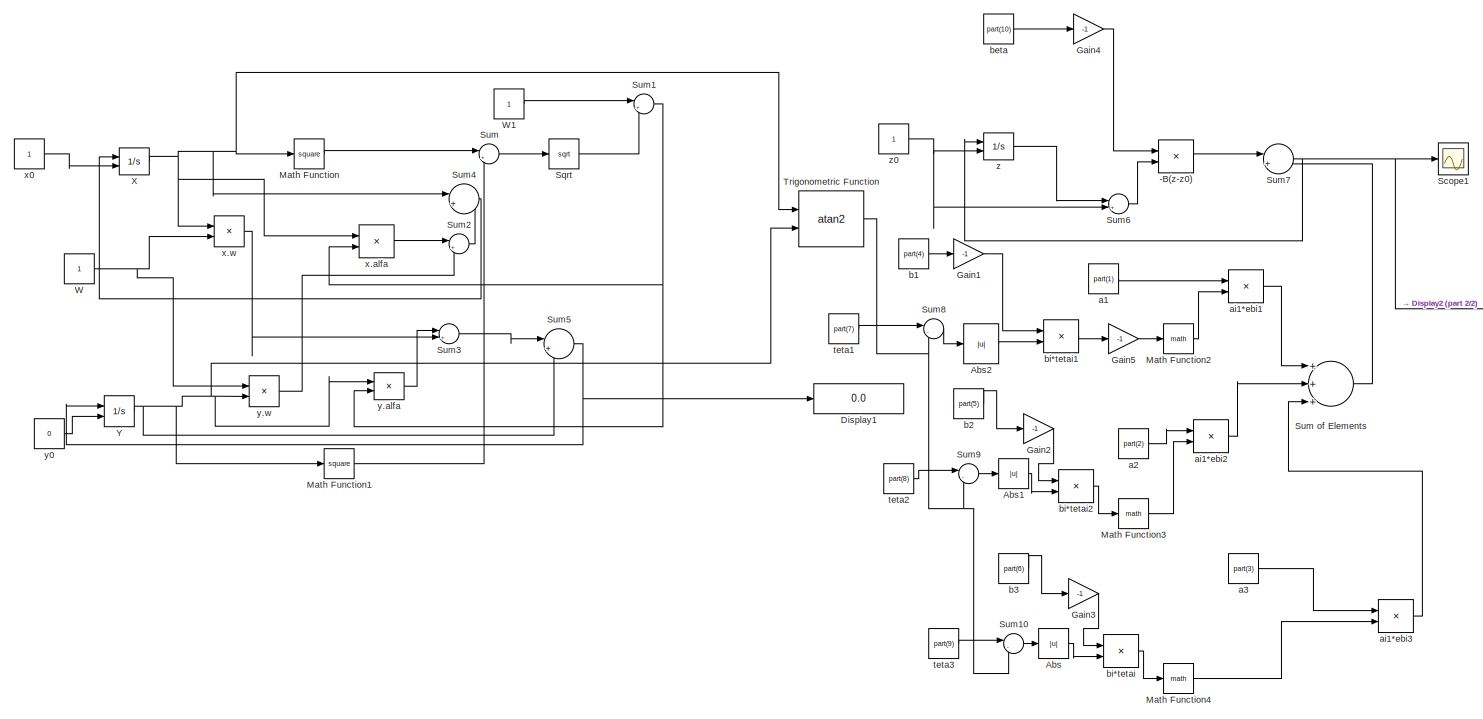
[diagram: root canvas - part 1/2, most of the canvas]
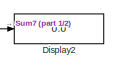
[diagram: root canvas - part 2/2, middle right region]
MODEL slx_1a3cc3e0c7d6
KIND model
CONFIG AbsTol = auto
CONFIG FixedStep = auto
CONFIG MaxStep = auto
CONFIG MinStep = auto
CONFIG RelTol = 1e-3
CONFIG SampleTimeConstraint = Unconstrained
CONFIG Solver = VariableStepAuto
CONFIG SolverMode = Auto
CONFIG SolverName = VariableStepAuto
CONFIG StartTime = 0.0
CONFIG StopTime = inf
BLOCK [Product] -B(z-z0)
  InputSameDT = off
  OutDataTypeStr = Inherit: Inherit via internal rule
  Ports = [2, 1]
  RndMeth = Floor
  SaturateOnIntegerOverflow = off
BLOCK [Abs] Abs
  SaturateOnIntegerOverflow = off
BLOCK [Abs] Abs1
  SaturateOnIntegerOverflow = off
BLOCK [Abs] Abs2
  SaturateOnIntegerOverflow = off
BLOCK [Display] Display1
  Decimation = 1
  Ports = [1]
BLOCK [Display] Display2
  Decimation = 1
  Ports = [1]
BLOCK [Gain] Gain1
  Gain = -1
  OutDataTypeStr = Inherit: Inherit via internal rule
  ParamDataTypeStr = Inherit: Inherit via internal rule
  SaturateOnIntegerOverflow = off
BLOCK [Gain] Gain2
  Gain = -1
  OutDataTypeStr = Inherit: Inherit via internal rule
  ParamDataTypeStr = Inherit: Inherit via internal rule
  SaturateOnIntegerOverflow = off
BLOCK [Gain] Gain3
  Gain = -1
  OutDataTypeStr = Inherit: Inherit via internal rule
  ParamDataTypeStr = Inherit: Inherit via internal rule
  SaturateOnIntegerOverflow = off
BLOCK [Gain] Gain4
  Gain = -1
  OutDataTypeStr = Inherit: Inherit via internal rule
  ParamDataTypeStr = Inherit: Inherit via internal rule
  SaturateOnIntegerOverflow = off
BLOCK [Gain] Gain5
  Gain = -1
  OutDataTypeStr = Inherit: Inherit via internal rule
  ParamDataTypeStr = Inherit: Inherit via internal rule
  SaturateOnIntegerOverflow = off
BLOCK [Math] Math Function
  Operator = square
  Ports = [1, 1]
BLOCK [Math] Math Function1
  Operator = square
  Ports = [1, 1]
BLOCK [Math] Math Function2
  Ports = [1, 1]
BLOCK [Math] Math Function3
  Ports = [1, 1]
BLOCK [Math] Math Function4
  Ports = [1, 1]
BLOCK [Scope] Scope1
  Ports = [1]
  ScopeSpecificationString = Simulink.scopes.TimeScopeBlockCfg('CurrentConfiguration', extmgr.ConfigurationSet(extmgr.Configuration('Core','General UI',true),extmgr.Configuration('Core','Source UI',true),extmgr.Configuration('Sources','WiredSimulink',true),extmgr.Configuration('Visuals','Time Domain',true,'SerializedDisplays',{struct('MinYLimReal','-4524389760414.2686','MaxYLimReal','502709973357.12317','YLabelReal','','MinYL...<+1442ch>
BLOCK [Sqrt] Sqrt
BLOCK [Sum] Sum
  IconShape = round
  InputSameDT = off
  Inputs = |++
  OutDataTypeStr = Inherit: Inherit via internal rule
  Ports = [2, 1]
  SaturateOnIntegerOverflow = off
BLOCK [Sum] Sum of Elements
  InputSameDT = off
  Inputs = +++
  OutDataTypeStr = Inherit: Inherit via internal rule
  Ports = [3, 1]
  SaturateOnIntegerOverflow = off
BLOCK [Sum] Sum1
  IconShape = round
  InputSameDT = off
  Inputs = |+-
  OutDataTypeStr = Inherit: Inherit via internal rule
  Ports = [2, 1]
  SaturateOnIntegerOverflow = off
BLOCK [Sum] Sum10
  IconShape = round
  InputSameDT = off
  Inputs = |-+
  OutDataTypeStr = Inherit: Inherit via internal rule
  Ports = [2, 1]
  SaturateOnIntegerOverflow = off
BLOCK [Sum] Sum2
  IconShape = round
  InputSameDT = off
  Inputs = |+-
  OutDataTypeStr = Inherit: Inherit via internal rule
  Ports = [2, 1]
  SaturateOnIntegerOverflow = off
BLOCK [Sum] Sum3
  IconShape = round
  InputSameDT = off
  Inputs = |++
  OutDataTypeStr = Inherit: Inherit via internal rule
  Ports = [2, 1]
  SaturateOnIntegerOverflow = off
BLOCK [Sum] Sum4
  IconShape = round
  InputSameDT = off
  Inputs = |++
  OutDataTypeStr = Inherit: Inherit via internal rule
  Ports = [2, 1]
  SaturateOnIntegerOverflow = off
BLOCK [Sum] Sum5
  IconShape = round
  InputSameDT = off
  Inputs = |++
  OutDataTypeStr = Inherit: Inherit via internal rule
  Ports = [2, 1]
  SaturateOnIntegerOverflow = off
BLOCK [Sum] Sum6
  IconShape = round
  InputSameDT = off
  Inputs = |+-
  OutDataTypeStr = Inherit: Inherit via internal rule
  Ports = [2, 1]
  SaturateOnIntegerOverflow = off
BLOCK [Sum] Sum7
  IconShape = round
  InputSameDT = off
  Inputs = |++
  OutDataTypeStr = Inherit: Inherit via internal rule
  Ports = [2, 1]
  SaturateOnIntegerOverflow = off
BLOCK [Sum] Sum8
  IconShape = round
  InputSameDT = off
  Inputs = |-+
  OutDataTypeStr = Inherit: Inherit via internal rule
  Ports = [2, 1]
  SaturateOnIntegerOverflow = off
BLOCK [Sum] Sum9
  IconShape = round
  InputSameDT = off
  Inputs = |-+
  OutDataTypeStr = Inherit: Inherit via internal rule
  Ports = [2, 1]
  SaturateOnIntegerOverflow = off
BLOCK [Trigonometry] Trigonometric Function
  Operator = atan2
  Ports = [2, 1]
BLOCK [Constant] W
BLOCK [Constant] W1
BLOCK [Integrator] X
  InitialCondition = 1
  InitialConditionSource = external
  Ports = [2, 1]
BLOCK [Integrator] Y
  InitialConditionSource = external
  Ports = [2, 1]
BLOCK [Constant] a1
  Value = part(1)
BLOCK [Constant] a2
  Value = part(2)
BLOCK [Constant] a3
  Value = part(3)
BLOCK [Product] ai1*ebi1
  InputSameDT = off
  OutDataTypeStr = Inherit: Inherit via internal rule
  Ports = [2, 1]
  RndMeth = Floor
  SaturateOnIntegerOverflow = off
BLOCK [Product] ai1*ebi2
  InputSameDT = off
  OutDataTypeStr = Inherit: Inherit via internal rule
  Ports = [2, 1]
  RndMeth = Floor
  SaturateOnIntegerOverflow = off
BLOCK [Product] ai1*ebi3
  InputSameDT = off
  OutDataTypeStr = Inherit: Inherit via internal rule
  Ports = [2, 1]
  RndMeth = Floor
  SaturateOnIntegerOverflow = off
BLOCK [Constant] b1
  Value = part(4)
BLOCK [Constant] b2
  Value = part(5)
BLOCK [Constant] b3
  Value = part(6)
BLOCK [Constant] beta
  Value = part(10)
BLOCK [Product] bi*tetai
  InputSameDT = off
  OutDataTypeStr = Inherit: Inherit via internal rule
  Ports = [2, 1]
  RndMeth = Floor
  SaturateOnIntegerOverflow = off
BLOCK [Product] bi*tetai1
  InputSameDT = off
  OutDataTypeStr = Inherit: Inherit via internal rule
  Ports = [2, 1]
  RndMeth = Floor
  SaturateOnIntegerOverflow = off
BLOCK [Product] bi*tetai2
  InputSameDT = off
  OutDataTypeStr = Inherit: Inherit via internal rule
  Ports = [2, 1]
  RndMeth = Floor
  SaturateOnIntegerOverflow = off
BLOCK [Constant] teta1
  Value = part(7)
BLOCK [Constant] teta2
  Value = part(8)
BLOCK [Constant] teta3
  Value = part(9)
BLOCK [Product] x.alfa
  InputSameDT = off
  OutDataTypeStr = Inherit: Inherit via internal rule
  Ports = [2, 1]
  RndMeth = Floor
  SaturateOnIntegerOverflow = off
BLOCK [Product] x.w
  InputSameDT = off
  OutDataTypeStr = Inherit: Inherit via internal rule
  Ports = [2, 1]
  RndMeth = Floor
  SaturateOnIntegerOverflow = off
BLOCK [Constant] x0
BLOCK [Product] y.alfa
  InputSameDT = off
  OutDataTypeStr = Inherit: Inherit via internal rule
  Ports = [2, 1]
  RndMeth = Floor
  SaturateOnIntegerOverflow = off
BLOCK [Product] y.w
  InputSameDT = off
  OutDataTypeStr = Inherit: Inherit via internal rule
  Ports = [2, 1]
  RndMeth = Floor
  SaturateOnIntegerOverflow = off
BLOCK [Constant] y0 
  Value = 0
BLOCK [Integrator] z
  InitialCondition = 1
  InitialConditionSource = external
  Ports = [2, 1]
BLOCK [Constant] z0
LINE -B(z-z0):1 -> Sum7:1
LINE Abs1:1 -> bi*tetai2:2
LINE Abs2:1 -> bi*tetai1:2
LINE Abs:1 -> bi*tetai:2
LINE Gain1:1 -> bi*tetai1:1
LINE Gain2:1 -> bi*tetai2:1
LINE Gain3:1 -> bi*tetai:1
LINE Gain4:1 -> -B(z-z0):1
LINE Gain5:1 -> Math Function2:1
LINE Math Function1:1 -> Sum:2
LINE Math Function2:1 -> ai1*ebi1:2
LINE Math Function3:1 -> ai1*ebi2:2
LINE Math Function4:1 -> ai1*ebi3:2
LINE Math Function:1 -> Sum:1
LINE Sqrt:1 -> Sum1:2
LINE Sum of Elements:1 -> Sum7:2
LINE Sum10:1 -> Abs:1
NET Sum1:1 -> x.alfa:2, y.alfa:2
LINE Sum2:1 -> Sum4:2
LINE Sum3:1 -> Sum5:1
LINE Sum4:1 -> X:1
NET Sum5:1 -> Display1:1, Y:1
LINE Sum6:1 -> -B(z-z0):2
NET Sum7:1 -> Display2:1, Scope1:1, z:1
LINE Sum8:1 -> Abs2:1
LINE Sum9:1 -> Abs1:1
LINE Sum:1 -> Sqrt:1
NET Trigonometric Function:1 -> Sum10:2, Sum8:2, Sum9:2
LINE W1:1 -> Sum1:1
NET W:1 -> x.w:2, y.w:1
NET X:1 -> Math Function:1, Sum4:1, Trigonometric Function:1, x.alfa:1, x.w:1
NET Y:1 -> Math Function1:1, Sum5:2, Trigonometric Function:2, y.alfa:1, y.w:2
LINE a1:1 -> ai1*ebi1:1
LINE a2:1 -> ai1*ebi2:1
LINE a3:1 -> ai1*ebi3:1
LINE ai1*ebi1:1 -> Sum of Elements:1
LINE ai1*ebi2:1 -> Sum of Elements:2
LINE ai1*ebi3:1 -> Sum of Elements:3
LINE b1:1 -> Gain1:1
LINE b2:1 -> Gain2:1
LINE b3:1 -> Gain3:1
LINE beta:1 -> Gain4:1
LINE bi*tetai1:1 -> Gain5:1
LINE bi*tetai2:1 -> Math Function3:1
LINE bi*tetai:1 -> Math Function4:1
LINE teta1:1 -> Sum8:1
LINE teta2:1 -> Sum9:1
LINE teta3:1 -> Sum10:1
LINE x.alfa:1 -> Sum2:1
LINE x.w:1 -> Sum3:2
LINE x0:1 -> X:2
LINE y.alfa:1 -> Sum3:1
LINE y.w:1 -> Sum2:2
LINE y0 :1 -> Y:2
NET z0:1 -> Sum6:2, z:2
LINE z:1 -> Sum6:1
note: NET lines group one-source signal fan-out (src -> all destinations, sorted); 1:1 wires keep LINE
